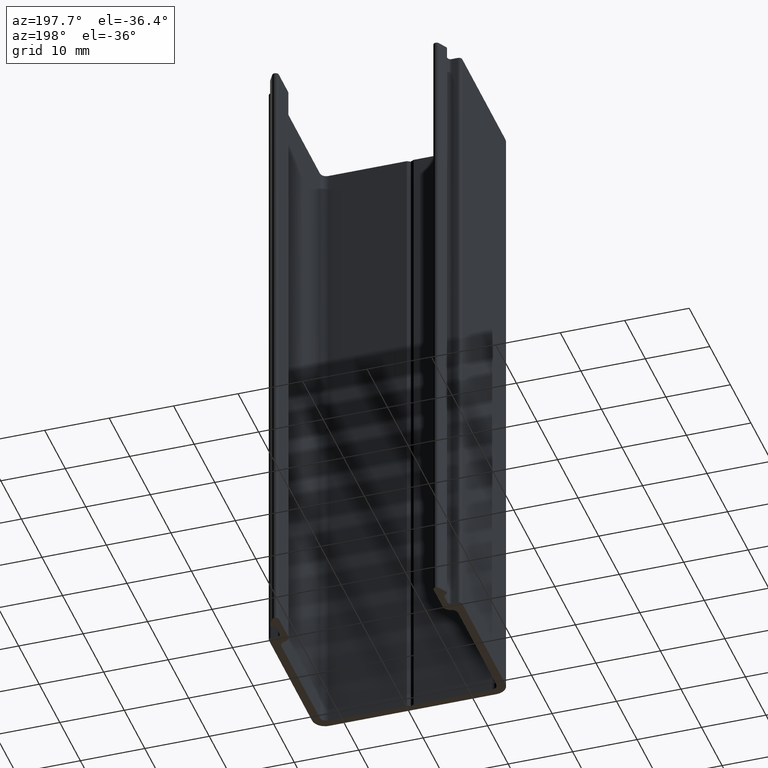
[diagram: clean part render]
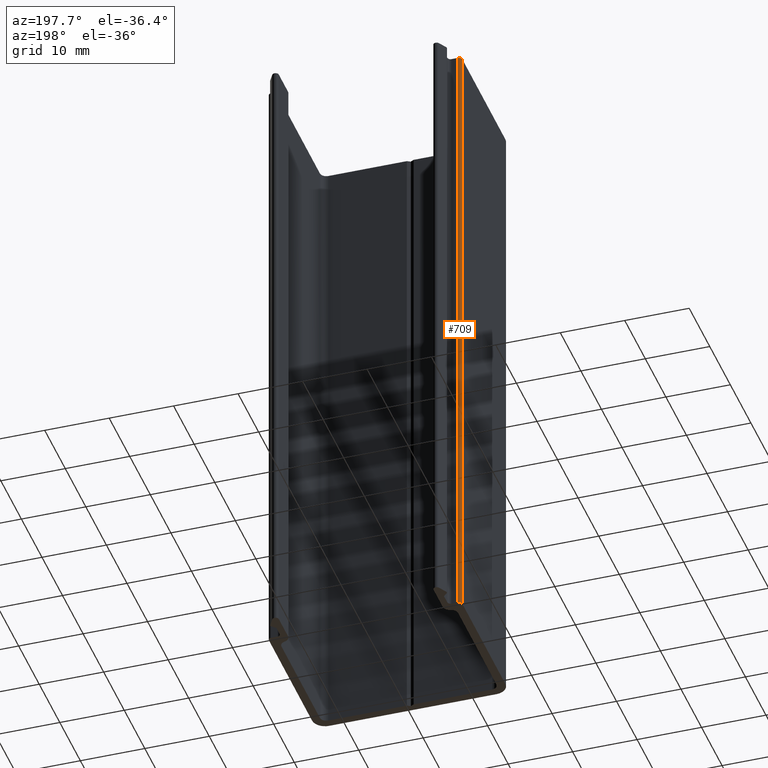
[diagram: same view with one face highlighted and labeled with its STEP entity id]
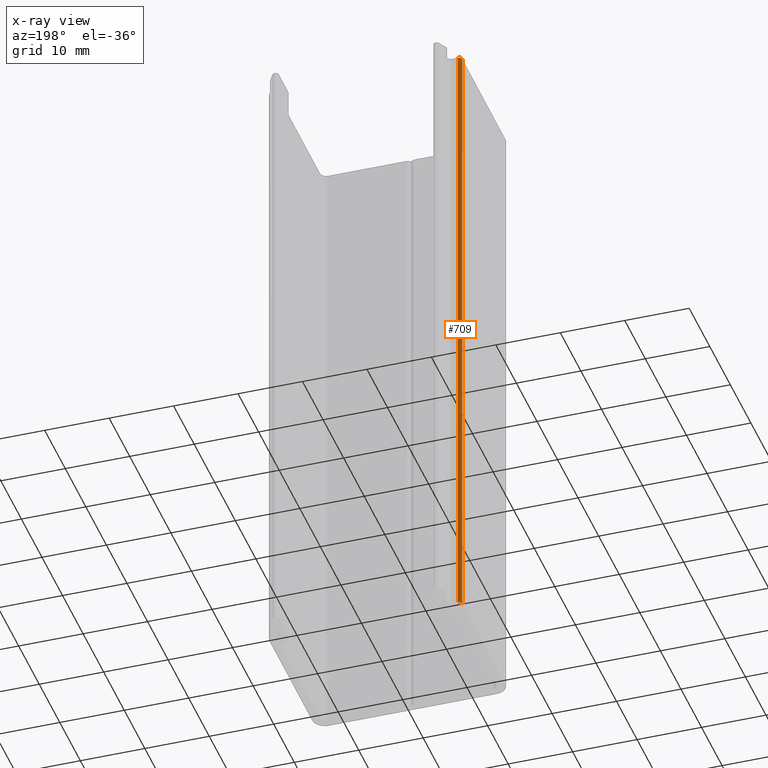
[diagram: x-ray of the same camera — body ghosted, the highlighted face saturated]
A machine part, auxiliary view. The second image highlights one B-rep face of the part: STEP entity #709.
The next image is the same camera in x-ray: the body ghosted, the highlighted face saturated — about 0% of this face is hidden behind the body in this view.
In plain terms, the highlighted cylindrical surface (edge-blend (fillet) strip) has radius 0.5001 mm, axis along (0, 0, 1).
Its self-contained STEP definition (entity closure, byte-faithful):
#33=CIRCLE('',#767,0.500103581741702);
#34=CIRCLE('',#768,0.500103581741702);
#56=CYLINDRICAL_SURFACE('',#766,0.500103581741702);
#83=FACE_OUTER_BOUND('',#120,.T.);
#120=EDGE_LOOP('',(#538,#539,#540,#541));
#178=LINE('',#1132,#251);
#180=LINE('',#1138,#253);
#251=VECTOR('',#916,100.);
#253=VECTOR('',#922,100.);
#323=VERTEX_POINT('',#1129);
#324=VERTEX_POINT('',#1131);
#325=VERTEX_POINT('',#1135);
#326=VERTEX_POINT('',#1137);
#412=EDGE_CURVE('',#323,#324,#178,.T.);
#414=EDGE_CURVE('',#325,#323,#33,.T.);
#415=EDGE_CURVE('',#325,#326,#180,.T.);
#416=EDGE_CURVE('',#324,#326,#34,.T.);
#538=ORIENTED_EDGE('',*,*,#414,.F.);
#539=ORIENTED_EDGE('',*,*,#415,.T.);
#540=ORIENTED_EDGE('',*,*,#416,.F.);
#541=ORIENTED_EDGE('',*,*,#412,.F.);
#709=ADVANCED_FACE('',(#83),#56,.T.);
#766=AXIS2_PLACEMENT_3D('',#1134,#918,#919);
#767=AXIS2_PLACEMENT_3D('',#1136,#920,#921);
#768=AXIS2_PLACEMENT_3D('',#1139,#923,#924);
#916=DIRECTION('',(0.,0.,-1.));
#918=DIRECTION('center_axis',(0.,0.,1.));
#919=DIRECTION('ref_axis',(-4.43997229837308E-14,-1.,0.));
#920=DIRECTION('center_axis',(0.,0.,1.));
#921=DIRECTION('ref_axis',(-4.43997229837308E-14,-1.,0.));
#922=DIRECTION('',(0.,0.,-1.));
#923=DIRECTION('center_axis',(0.,0.,-1.));
#924=DIRECTION('ref_axis',(-4.43997229837308E-14,-1.,0.));
#1129=CARTESIAN_POINT('',(-15.0001035817411,8.00000000000107,100.));
#1131=CARTESIAN_POINT('',(-15.0001035817411,8.00000000000107,0.));
#1132=CARTESIAN_POINT('',(-15.0001035817411,8.00000000000107,0.));
#1134=CARTESIAN_POINT('Origin',(-14.4999999999994,8.00000000000104,0.));
#1135=CARTESIAN_POINT('',(-14.4999999999994,8.50010358174274,100.));
#1136=CARTESIAN_POINT('Origin',(-14.4999999999994,8.00000000000104,100.));
#1137=CARTESIAN_POINT('',(-14.4999999999994,8.50010358174274,0.));
#1138=CARTESIAN_POINT('',(-14.4999999999994,8.50010358174274,0.));
#1139=CARTESIAN_POINT('Origin',(-14.4999999999994,8.00000000000104,0.));